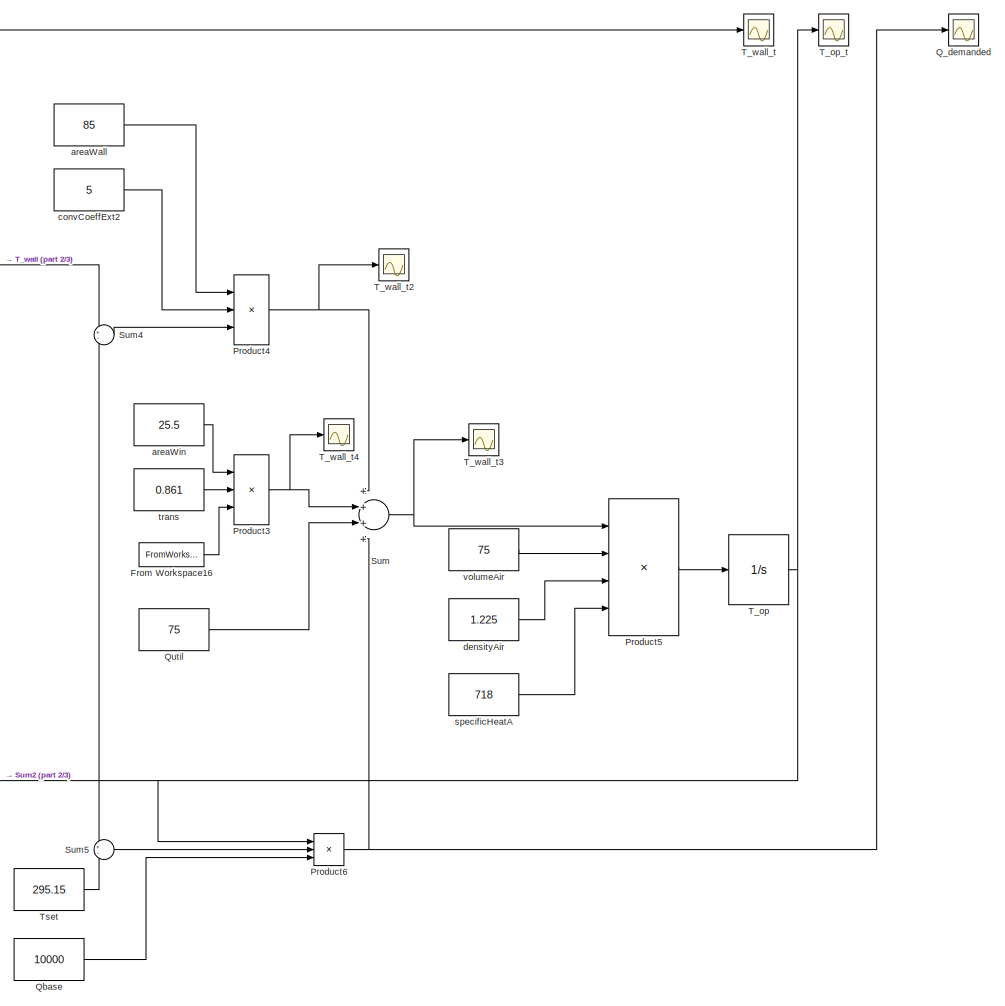
[diagram: root canvas - part 1/3, middle right region]
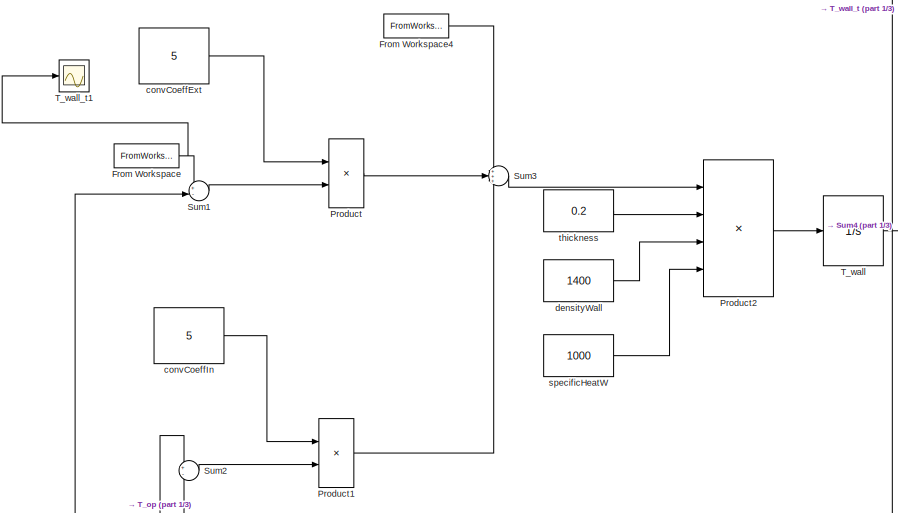
[diagram: root canvas - part 2/3, top left region]
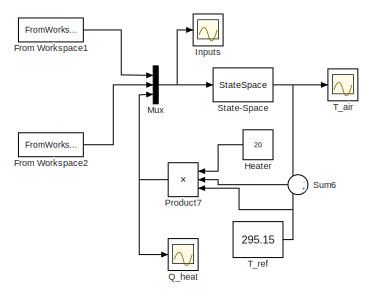
[diagram: root canvas - part 3/3, bottom left region]
MODEL slx_6fe4e6c59c1b
KIND model
CONFIG AbsTol = auto
CONFIG EnableMultiTasking = off
CONFIG FixedStep = 1
CONFIG MaxStep = auto
CONFIG MinStep = auto
CONFIG RelTol = 1e-3
CONFIG SampleTimeConstraint = Unconstrained
CONFIG Solver = VariableStepAuto
CONFIG SolverName = VariableStepAuto
CONFIG StartTime = 0.0
CONFIG StopTime = 1000000
BLOCK [FromWorkspace] From Workspace
  SampleTime = 0
  VariableName = outT
  ZeroCross = on
BLOCK [FromWorkspace] From Workspace1
  SampleTime = 0
  VariableName = u1
  ZeroCross = on
BLOCK [FromWorkspace] From Workspace16
  SampleTime = 0
  VariableName = radHeat
  ZeroCross = on
BLOCK [FromWorkspace] From Workspace2
  SampleTime = 0
  VariableName = u4
  ZeroCross = on
BLOCK [FromWorkspace] From Workspace4
  SampleTime = 0
  VariableName = radHeat
  ZeroCross = on
BLOCK [Constant] Heater
  Value = 20
BLOCK [Scope] Inputs
  NumInputPorts = 1
  Ports = [1]
  ScopeSpecificationString = Simulink.scopes.TimeScopeBlockCfg('CurrentConfiguration', extmgr.ConfigurationSet(extmgr.Configuration('Core','General UI',true),extmgr.Configuration('Core','Source UI',true),extmgr.Configuration('Sources','WiredSimulink',true,'DataLoggingVariableName','ScopeData6'),extmgr.Configuration('Visuals','Time Domain',true,'SerializedDisplays',{struct('MinYLimReal','-0.05417','MaxYLimReal','0.48757','YLab...<+1449ch>
BLOCK [Mux] Mux
  DisplayOption = bar
  Inputs = 3
  Ports = [3, 1]
BLOCK [Product] Product
  InputSameDT = off
  OutDataTypeStr = Inherit: Inherit via internal rule
  Ports = [2, 1]
  RndMeth = Floor
  SaturateOnIntegerOverflow = off
BLOCK [Product] Product1
  InputSameDT = off
  OutDataTypeStr = Inherit: Inherit via internal rule
  Ports = [2, 1]
  RndMeth = Floor
  SaturateOnIntegerOverflow = off
BLOCK [Product] Product2
  InputSameDT = off
  Inputs = *///
  OutDataTypeStr = Inherit: Inherit via internal rule
  Ports = [4, 1]
  RndMeth = Floor
  SaturateOnIntegerOverflow = off
BLOCK [Product] Product3
  InputSameDT = off
  Inputs = 3
  OutDataTypeStr = Inherit: Inherit via internal rule
  Ports = [3, 1]
  RndMeth = Floor
  SaturateOnIntegerOverflow = off
BLOCK [Product] Product4
  InputSameDT = off
  Inputs = 3
  OutDataTypeStr = Inherit: Inherit via internal rule
  Ports = [3, 1]
  RndMeth = Floor
  SaturateOnIntegerOverflow = off
BLOCK [Product] Product5
  InputSameDT = off
  Inputs = *///
  OutDataTypeStr = Inherit: Inherit via internal rule
  Ports = [4, 1]
  RndMeth = Floor
  SaturateOnIntegerOverflow = off
BLOCK [Product] Product6
  InputSameDT = off
  Inputs = /**
  OutDataTypeStr = Inherit: Inherit via internal rule
  Ports = [3, 1]
  RndMeth = Floor
  SaturateOnIntegerOverflow = off
BLOCK [Product] Product7
  InputSameDT = off
  Inputs = **/
  OutDataTypeStr = Inherit: Inherit via internal rule
  Ports = [3, 1]
  RndMeth = Floor
  SaturateOnIntegerOverflow = off
BLOCK [Scope] Q_demanded
  NumInputPorts = 1
  Ports = [1]
  ScopeSpecificationString = Simulink.scopes.TimeScopeBlockCfg('CurrentConfiguration', extmgr.ConfigurationSet(extmgr.Configuration('Core','General UI',true),extmgr.Configuration('Core','Source UI',true),extmgr.Configuration('Sources','WiredSimulink',true,'DataLoggingVariableName','ScopeData2'),extmgr.Configuration('Visuals','Time Domain',true,'SerializedDisplays',{struct('MinYLimReal','-1406.09549','MaxYLimReal','10931.61284...<+1393ch>
BLOCK [Scope] Q_heat
  NumInputPorts = 1
  Ports = [1]
  ScopeSpecificationString = Simulink.scopes.TimeScopeBlockCfg('CurrentConfiguration', extmgr.ConfigurationSet(extmgr.Configuration('Core','General UI',true),extmgr.Configuration('Core','Source UI',true),extmgr.Configuration('Sources','WiredSimulink',true,'DataLoggingVariableName','ScopeData1'),extmgr.Configuration('Visuals','Time Domain',true,'SerializedDisplays',{struct('MinYLimReal','-0.3241','MaxYLimReal','0.80022','YLabe...<+1425ch>
BLOCK [Constant] Qbase
  Value = 10000
BLOCK [Constant] Qutil
  Value = 75
BLOCK [StateSpace] State-Space
  A = A
  B = B
  C = [0 0 0 1]
  D = [0 0 0]
  Ports = [1, 1]
  X0 = [270; 275; 280; 285]
BLOCK [Sum] Sum
  IconShape = round
  InputSameDT = off
  Inputs = ++++
  OutDataTypeStr = Inherit: Inherit via internal rule
  Ports = [4, 1]
  SaturateOnIntegerOverflow = off
BLOCK [Sum] Sum1
  IconShape = round
  InputSameDT = off
  Inputs = +-
  OutDataTypeStr = Inherit: Inherit via internal rule
  Ports = [2, 1]
  SaturateOnIntegerOverflow = off
BLOCK [Sum] Sum2
  IconShape = round
  InputSameDT = off
  Inputs = +-
  OutDataTypeStr = Inherit: Inherit via internal rule
  Ports = [2, 1]
  SaturateOnIntegerOverflow = off
BLOCK [Sum] Sum3
  IconShape = round
  InputSameDT = off
  Inputs = +++
  OutDataTypeStr = Inherit: Inherit via internal rule
  Ports = [3, 1]
  SaturateOnIntegerOverflow = off
BLOCK [Sum] Sum4
  IconShape = round
  InputSameDT = off
  Inputs = +-
  OutDataTypeStr = Inherit: Inherit via internal rule
  Ports = [2, 1]
  SaturateOnIntegerOverflow = off
BLOCK [Sum] Sum5
  IconShape = round
  InputSameDT = off
  Inputs = +-
  OutDataTypeStr = Inherit: Inherit via internal rule
  Ports = [2, 1]
  SaturateOnIntegerOverflow = off
BLOCK [Sum] Sum6
  IconShape = round
  InputSameDT = off
  Inputs = -+
  OutDataTypeStr = Inherit: Inherit via internal rule
  Ports = [2, 1]
  SaturateOnIntegerOverflow = off
BLOCK [Scope] T_air
  NumInputPorts = 1
  Ports = [1]
  ScopeSpecificationString = Simulink.scopes.TimeScopeBlockCfg('CurrentConfiguration', extmgr.ConfigurationSet(extmgr.Configuration('Core','General UI',true),extmgr.Configuration('Core','Source UI',true),extmgr.Configuration('Sources','WiredSimulink',true,'DataLoggingVariableName','ScopeData5'),extmgr.Configuration('Visuals','Time Domain',true,'SerializedDisplays',{struct('MinYLimReal','283.72898','MaxYLimReal','296.43916','Y...<+1466ch>
BLOCK [Integrator] T_op
  InitialCondition = 290.15
  Ports = [1, 1]
BLOCK [Scope] T_op_t
  NumInputPorts = 1
  Ports = [1]
  ScopeSpecificationString = Simulink.scopes.TimeScopeBlockCfg('CurrentConfiguration', extmgr.ConfigurationSet(extmgr.Configuration('Core','General UI',true),extmgr.Configuration('Core','Source UI',true),extmgr.Configuration('Sources','WiredSimulink',true,'DataLoggingVariableName','ScopeData1'),extmgr.Configuration('Visuals','Time Domain',true,'SerializedDisplays',{struct('MinYLimReal','-894.58982','MaxYLimReal','10952.80837'...<+1385ch>
BLOCK [Constant] T_ref
  Value = 295.15
BLOCK [Integrator] T_wall
  InitialCondition = 293.15
  Ports = [1, 1]
BLOCK [Scope] T_wall_t
  NumInputPorts = 1
  Ports = [1]
  ScopeSpecificationString = Simulink.scopes.TimeScopeBlockCfg('CurrentConfiguration', extmgr.ConfigurationSet(extmgr.Configuration('Core','General UI',true),extmgr.Configuration('Core','Source UI',true),extmgr.Configuration('Sources','WiredSimulink',true),extmgr.Configuration('Visuals','Time Domain',true,'SerializedDisplays',{struct('MinYLimReal','236.78451','MaxYLimReal','800.40218','YLabelReal','','MinYLimMag','236.78451',...<+1340ch>
BLOCK [Scope] T_wall_t1
  NumInputPorts = 1
  Ports = [1]
  ScopeSpecificationString = Simulink.scopes.TimeScopeBlockCfg('CurrentConfiguration', extmgr.ConfigurationSet(extmgr.Configuration('Core','General UI',true),extmgr.Configuration('Core','Source UI',true),extmgr.Configuration('Sources','WiredSimulink',true,'DataLoggingVariableName','ScopeData1'),extmgr.Configuration('Visuals','Time Domain',true,'SerializedDisplays',{struct('MinYLimReal','257.34699','MaxYLimReal','284.57862','Y...<+1387ch>
BLOCK [Scope] T_wall_t2
  NumInputPorts = 1
  Ports = [1]
  ScopeSpecificationString = Simulink.scopes.TimeScopeBlockCfg('CurrentConfiguration', extmgr.ConfigurationSet(extmgr.Configuration('Core','General UI',true),extmgr.Configuration('Core','Source UI',true),extmgr.Configuration('Sources','WiredSimulink',true,'DataLoggingVariableName','ScopeData2'),extmgr.Configuration('Visuals','Time Domain',true,'SerializedDisplays',{struct('MinYLimReal','-4407201.92685','MaxYLimReal','491105.7...<+1411ch>
BLOCK [Scope] T_wall_t3
  NumInputPorts = 1
  Ports = [1]
  ScopeSpecificationString = Simulink.scopes.TimeScopeBlockCfg('CurrentConfiguration', extmgr.ConfigurationSet(extmgr.Configuration('Core','General UI',true),extmgr.Configuration('Core','Source UI',true),extmgr.Configuration('Sources','WiredSimulink',true,'DataLoggingVariableName','ScopeData3'),extmgr.Configuration('Visuals','Time Domain',true,'SerializedDisplays',{struct('MinYLimReal','-7381396.81922','MaxYLimReal','27494891...<+1412ch>
BLOCK [Scope] T_wall_t4
  NumInputPorts = 1
  Ports = [1]
  ScopeSpecificationString = Simulink.scopes.TimeScopeBlockCfg('CurrentConfiguration', extmgr.ConfigurationSet(extmgr.Configuration('Core','General UI',true),extmgr.Configuration('Core','Source UI',true),extmgr.Configuration('Sources','WiredSimulink',true,'DataLoggingVariableName','ScopeData4'),extmgr.Configuration('Visuals','Time Domain',true,'SerializedDisplays',{struct('MinYLimReal','-3396534.13961','MaxYLimReal','30568807...<+1417ch>
BLOCK [Constant] Tset
  Value = 295.15
BLOCK [Constant] areaWall
  Value = 85
BLOCK [Constant] areaWin
  Value = 25.5
BLOCK [Constant] convCoeffExt
  Value = 5
BLOCK [Constant] convCoeffExt2 
  Value = 5
BLOCK [Constant] convCoeffIn
  Value = 5
BLOCK [Constant] densityAir
  Value = 1.225
BLOCK [Constant] densityWall
  Value = 1400
BLOCK [Constant] specificHeatA
  Value = 718
BLOCK [Constant] specificHeatW
  Value = 1000
BLOCK [Constant] thickness
  Value = 0.2
BLOCK [Constant] trans
  Value = 0.861
BLOCK [Constant] volumeAir
  Value = 75
LINE From Workspace16:1 -> Product3:3
LINE From Workspace1:1 -> Mux:1
LINE From Workspace2:1 -> Mux:2
LINE From Workspace4:1 -> Sum3:1
NET From Workspace:1 -> Sum1:1, T_wall_t1:1
LINE Heater:1 -> Product7:1
NET Mux:1 -> Inputs:1, State-Space:1
LINE Product1:1 -> Sum3:3
LINE Product2:1 -> T_wall:1
NET Product3:1 -> Sum:2, T_wall_t4:1
NET Product4:1 -> Sum:1, T_wall_t2:1
LINE Product5:1 -> T_op:1
NET Product6:1 -> Q_demanded:1, Sum:4
NET Product7:1 -> Mux:3, Q_heat:1
LINE Product:1 -> Sum3:2
LINE Qbase:1 -> Product6:3
LINE Qutil:1 -> Sum:3
NET State-Space:1 -> Sum6:1, T_air:1
LINE Sum1:1 -> Product:2
LINE Sum2:1 -> Product1:2
LINE Sum3:1 -> Product2:1
LINE Sum4:1 -> Product4:3
LINE Sum5:1 -> Product6:2
LINE Sum6:1 -> Product7:2
NET Sum:1 -> Product5:1, T_wall_t3:1
NET T_op:1 -> Product6:1, Sum2:1, Sum4:2, Sum5:1, T_op_t:1
NET T_ref:1 -> Product7:3, Sum6:2
NET T_wall:1 -> Sum1:2, Sum2:2, Sum4:1, T_wall_t:1
LINE Tset:1 -> Sum5:2
LINE areaWall:1 -> Product4:1
LINE areaWin:1 -> Product3:1
LINE convCoeffExt2 :1 -> Product4:2
LINE convCoeffExt:1 -> Product:1
LINE convCoeffIn:1 -> Product1:1
LINE densityAir:1 -> Product5:3
LINE densityWall:1 -> Product2:3
LINE specificHeatA:1 -> Product5:4
LINE specificHeatW:1 -> Product2:4
LINE thickness:1 -> Product2:2
LINE trans:1 -> Product3:2
LINE volumeAir:1 -> Product5:2
note: NET lines group one-source signal fan-out (src -> all destinations, sorted); 1:1 wires keep LINE
